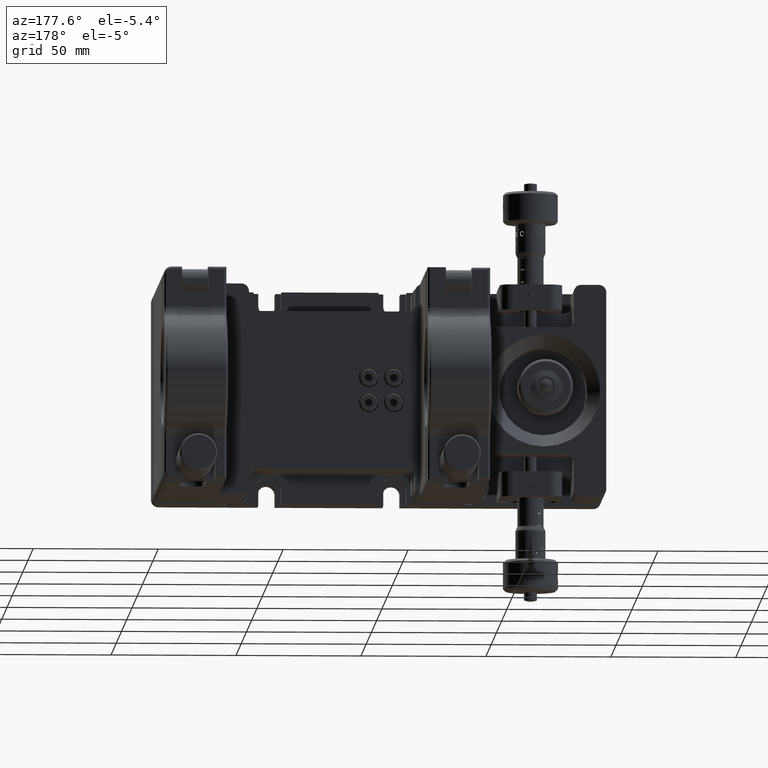
[diagram: clean part render]
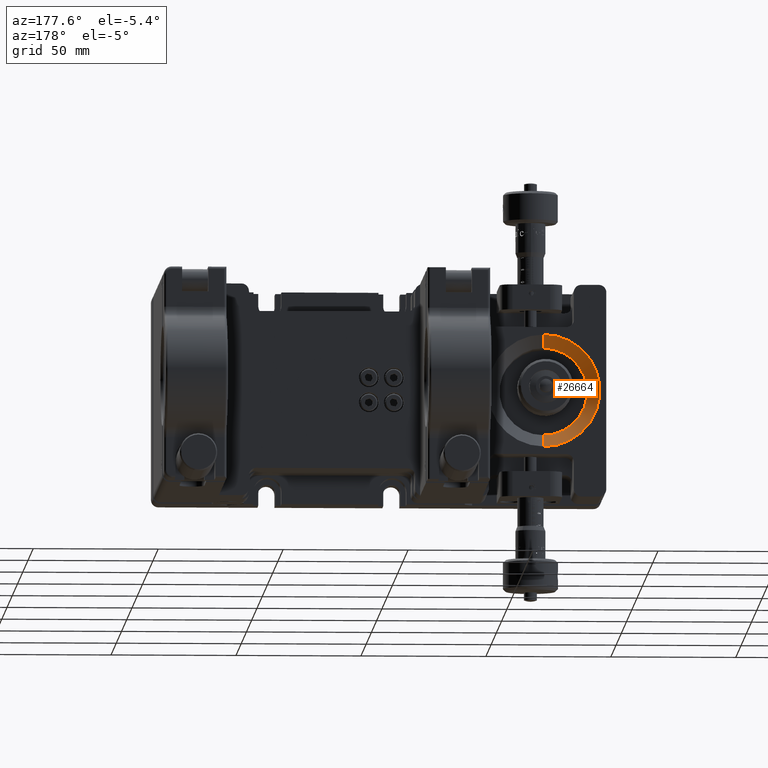
[diagram: same view with one face highlighted and labeled with its STEP entity id]
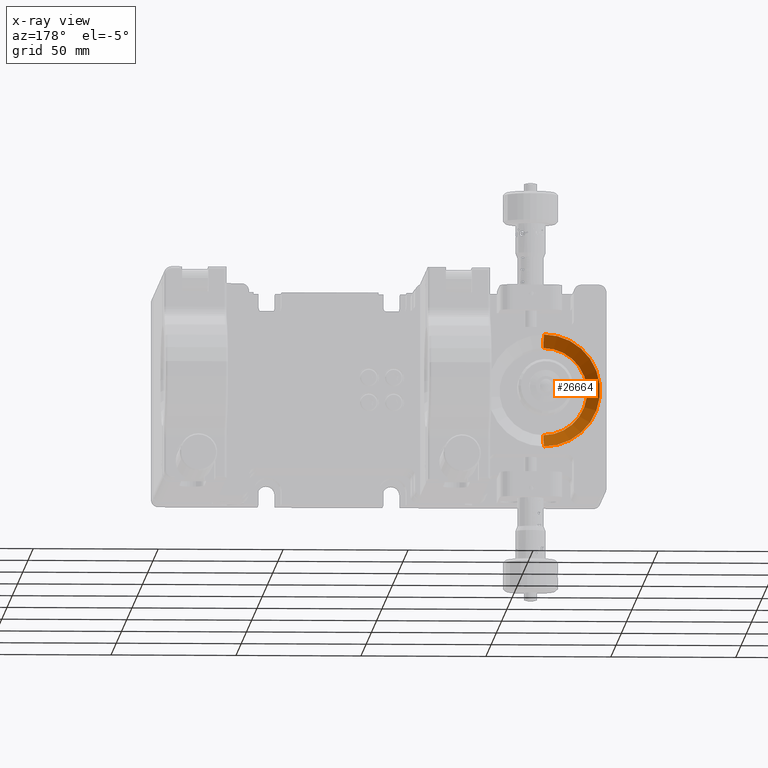
[diagram: x-ray of the same camera — body ghosted, the highlighted face saturated]
A machine part, auxiliary view. The second image highlights one B-rep face of the part: STEP entity #26664.
The next image is the same camera in x-ray: the body ghosted, the highlighted face saturated — about 0% of this face is hidden behind the body in this view.
In plain terms, the highlighted conical surface has half-angle 45 deg.
Its self-contained STEP definition (entity closure, byte-faithful):
#33 = CARTESIAN_POINT ( 'NONE',  ( -65.00000000000005684, 45.49999999999995026, -22.50000000000013500 ) ) ;
#578 = VERTEX_POINT ( 'NONE', #48690 ) ;
#2540 = LINE ( 'NONE', #37584, #13285 ) ;
#3231 = DIRECTION ( 'NONE',  ( 0.000000000000000000, 0.000000000000000000, -1.000000000000000000 ) ) ;
#3592 = EDGE_CURVE ( 'NONE', #6437, #32849, #30126, .T. ) ;
#4225 = ORIENTED_EDGE ( 'NONE', *, *, #37585, .F. ) ;
#6437 = VERTEX_POINT ( 'NONE', #7939 ) ;
#7939 = CARTESIAN_POINT ( 'NONE',  ( -65.00000000000005684, 40.49999999999996447, 17.49999999999988987 ) ) ;
#8492 = FACE_OUTER_BOUND ( 'NONE', #49425, .T. ) ;
#10630 = AXIS2_PLACEMENT_3D ( 'NONE', #38976, #26340, #56784 ) ;
#12615 = ORIENTED_EDGE ( 'NONE', *, *, #37969, .T. ) ;
#13285 = VECTOR ( 'NONE', #24649, 1000.000000000000227 ) ;
#15616 = DIRECTION ( 'NONE',  ( 0.000000000000000000, 1.000000000000000000, 0.000000000000000000 ) ) ;
#16174 = VECTOR ( 'NONE', #30677, 1000.000000000000227 ) ;
#16995 = AXIS2_PLACEMENT_3D ( 'NONE', #37446, #15616, #3231 ) ;
#17109 = CARTESIAN_POINT ( 'NONE',  ( -65.00000000000005684, 40.49999999999996447, -1.191436543607898857E-13 ) ) ;
#17880 = CIRCLE ( 'NONE', #16995, 17.50000000000000711 ) ;
#21676 = AXIS2_PLACEMENT_3D ( 'NONE', #17109, #25712, #35173 ) ;
#24649 = DIRECTION ( 'NONE',  ( 8.659560562354953812E-17, 0.7071067811865457964, -0.7071067811865492381 ) ) ;
#25173 = EDGE_CURVE ( 'NONE', #32849, #43085, #49085, .T. ) ;
#25712 = DIRECTION ( 'NONE',  ( 0.000000000000000000, 1.000000000000000000, 0.000000000000000000 ) ) ;
#26340 = DIRECTION ( 'NONE',  ( 0.000000000000000000, -1.000000000000000000, 0.000000000000000000 ) ) ;
#26664 = ADVANCED_FACE ( 'NONE', ( #8492 ), #28121, .F. ) ;
#28121 = CONICAL_SURFACE ( 'NONE', #21676, 17.50000000000000711, 0.7853981633974507215 ) ;
#29238 = ORIENTED_EDGE ( 'NONE', *, *, #3592, .F. ) ;
#30126 = LINE ( 'NONE', #30399, #16174 ) ;
#30160 = ORIENTED_EDGE ( 'NONE', *, *, #25173, .F. ) ;
#30399 = CARTESIAN_POINT ( 'NONE',  ( -65.00000000000005684, 40.49999999999996447, 17.49999999999988987 ) ) ;
#30677 = DIRECTION ( 'NONE',  ( 0.000000000000000000, 0.7071067811865457964, 0.7071067811865492381 ) ) ;
#32849 = VERTEX_POINT ( 'NONE', #51747 ) ;
#35173 = DIRECTION ( 'NONE',  ( 0.000000000000000000, 0.000000000000000000, 1.000000000000000000 ) ) ;
#37446 = CARTESIAN_POINT ( 'NONE',  ( -65.00000000000005684, 40.49999999999996447, -1.191436543607898857E-13 ) ) ;
#37584 = CARTESIAN_POINT ( 'NONE',  ( -65.00000000000005684, 40.49999999999996447, -17.50000000000012790 ) ) ;
#37585 = EDGE_CURVE ( 'NONE', #578, #6437, #17880, .T. ) ;
#37969 = EDGE_CURVE ( 'NONE', #578, #43085, #2540, .T. ) ;
#38976 = CARTESIAN_POINT ( 'NONE',  ( -65.00000000000005684, 45.49999999999995026, -1.191436543607898857E-13 ) ) ;
#43085 = VERTEX_POINT ( 'NONE', #33 ) ;
#48690 = CARTESIAN_POINT ( 'NONE',  ( -65.00000000000005684, 40.49999999999996447, -17.50000000000012790 ) ) ;
#49085 = CIRCLE ( 'NONE', #10630, 22.50000000000002132 ) ;
#49425 = EDGE_LOOP ( 'NONE', ( #4225, #12615, #30160, #29238 ) ) ;
#51747 = CARTESIAN_POINT ( 'NONE',  ( -65.00000000000005684, 45.49999999999995026, 22.49999999999989697 ) ) ;
#56784 = DIRECTION ( 'NONE',  ( 0.000000000000000000, 0.000000000000000000, -1.000000000000000000 ) ) ;